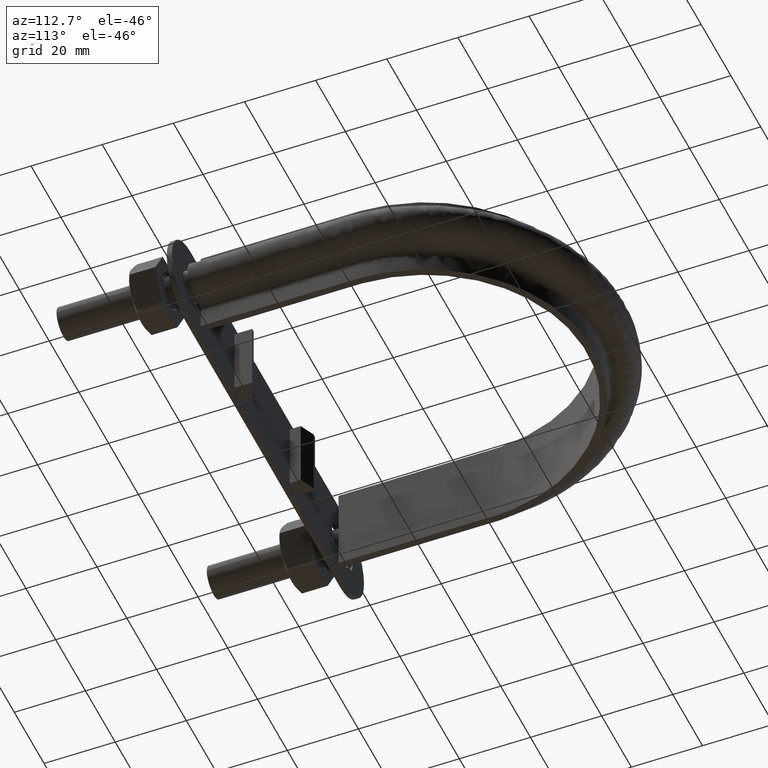
[diagram: clean part render]
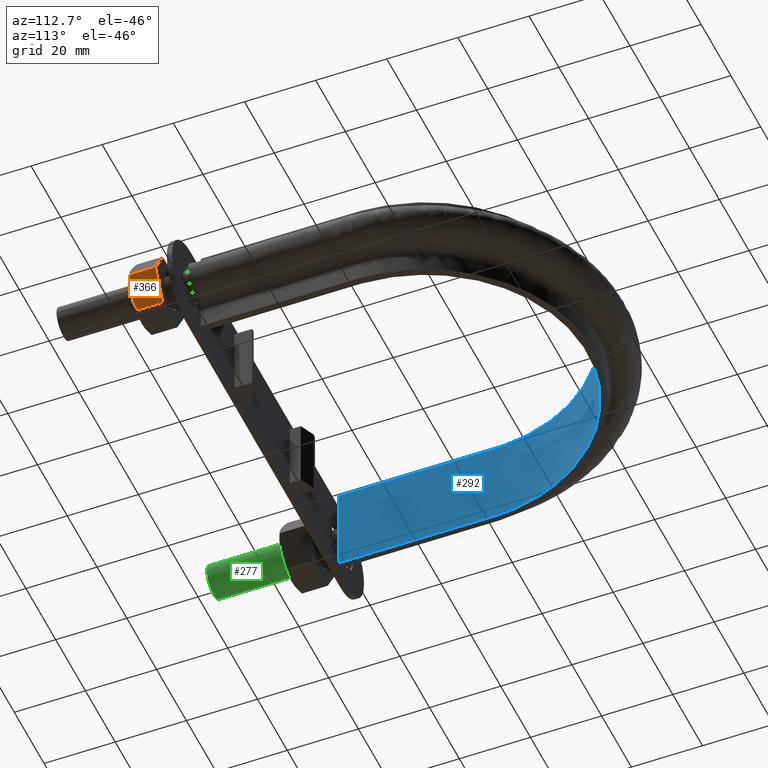
[diagram: same view with three faces highlighted in distinct colors, each labeled with its STEP entity id]
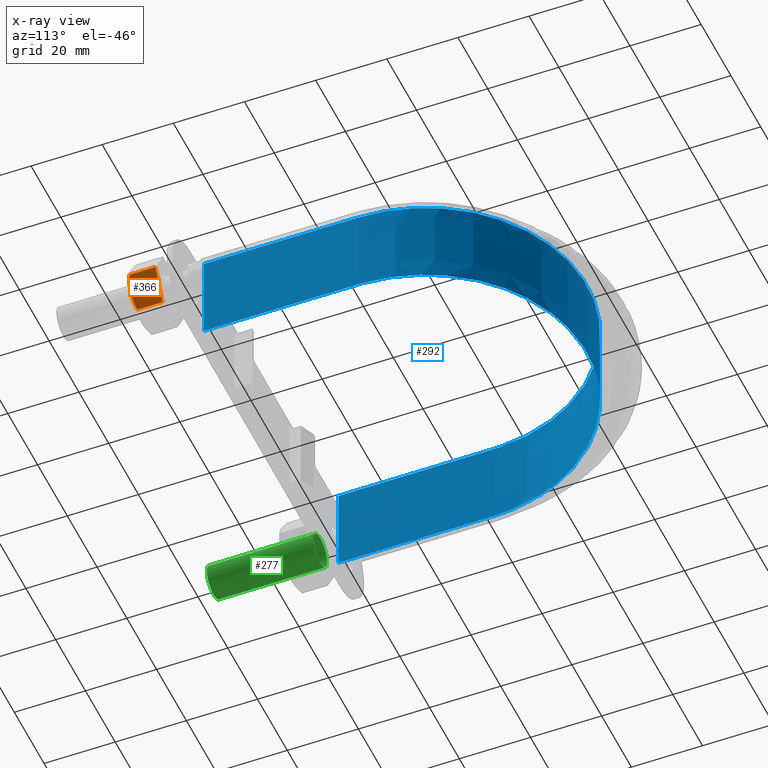
[diagram: x-ray of the same camera — body ghosted, the three highlighted faces saturated]
A machine part, auxiliary view with three faces highlighted in distinct colors.
The next image is the same camera in x-ray (body ghosted, the three faces saturated) — at least one of them is partly hidden behind the body in this view.
Their STEP definitions:

[orange] entity #366 — the highlighted planar face has unit normal (-0.866, 0, 0.5).
#366 = ADVANCED_FACE( '', ( #607 ), #608, .F. );
#607 = FACE_OUTER_BOUND( '', #1678, .T. );
#608 = PLANE( '', #1679 );
#1678 = EDGE_LOOP( '', ( #2438, #2439, #2440, #2441, #2442 ) );
#1679 = AXIS2_PLACEMENT_3D( '', #2443, #2444, #2445 );
#2438 = ORIENTED_EDGE( '', *, *, #2759, .F. );
#2439 = ORIENTED_EDGE( '', *, *, #2754, .F. );
#2440 = ORIENTED_EDGE( '', *, *, #2760, .F. );
#2441 = ORIENTED_EDGE( '', *, *, #2746, .F. );
#2442 = ORIENTED_EDGE( '', *, *, #2761, .F. );
#2443 = CARTESIAN_POINT( '', ( 60.3149545762201, 30.0000000000020, -5.77385204450641E-010 ) );
#2444 = DIRECTION( '', ( -0.866025403755025, 1.81492883553320E-016, 0.500000000050946 ) );
#2445 = DIRECTION( '', ( 0.500000000050946, -1.75487645995215E-016, 0.866025403755025 ) );
#2746 = EDGE_CURVE( '', #3130, #3132, #3133, .T. );
#2754 = EDGE_CURVE( '', #3144, #3093, #3146, .T. );
#2759 = EDGE_CURVE( '', #3093, #3151, #3152, .T. );
#2760 = EDGE_CURVE( '', #3132, #3144, #3153, .F. );
#2761 = EDGE_CURVE( '', #3151, #3130, #3154, .T. );
#3093 = VERTEX_POINT( '', #3915 );
#3130 = VERTEX_POINT( '', #3970 );
#3132 = VERTEX_POINT( '', #3972 );
#3133 = LINE( '', #3973, #3974 );
#3144 = VERTEX_POINT( '', #3995 );
#3146 = B_SPLINE_CURVE_WITH_KNOTS( '', 3, ( #3997, #3998, #3999, #4000, #4001, #4002 ), .UNSPECIFIED., .F., .F., ( 4, 2, 4 ), ( 4.83064900409211E-007, 0.00246777364959011, 0.00493506423427980 ), .UNSPECIFIED. );
#3151 = VERTEX_POINT( '', #4019 );
#3152 = B_SPLINE_CURVE_WITH_KNOTS( '', 3, ( #4020, #4021, #4022, #4023, #4024, #4025, #4026, #4027 ), .UNSPECIFIED., .F., .F., ( 4, 2, 2, 4 ), ( 0.00493506423427980, 0.00616384870526173, 0.00739263317624366, 0.00985020211820751 ), .UNSPECIFIED. );
#3153 = LINE( '', #4028, #4029 );
#3154 = LINE( '', #4030, #4031 );
#3915 = CARTESIAN_POINT( '', ( 57.8612159319151, 22.0000000000020, -4.25000000043151 ) );
#3970 = CARTESIAN_POINT( '', ( 60.2999656118141, 30.0000000000020, -0.0259616484778741 ) );
#3972 = CARTESIAN_POINT( '', ( 55.4224662520160, 30.0000000000020, -8.47403835238513 ) );
#3973 = CARTESIAN_POINT( '', ( 55.4112159316663, 30.0000000000020, -8.49352447882960 ) );
#3974 = VECTOR( '', #4388, 999.999999999879 );
#3995 = CARTESIAN_POINT( '', ( 55.4224662520160, 22.7505553499485, -8.47403835238513 ) );
#3997 = CARTESIAN_POINT( '', ( 55.4224662520159, 22.7505553499475, -8.47403835238525 ) );
#3998 = CARTESIAN_POINT( '', ( 55.8215186163373, 22.5212203171289, -7.78285938259404 ) );
#3999 = CARTESIAN_POINT( '', ( 56.2234530846201, 22.3324525365453, -7.08668846230971 ) );
#4000 = CARTESIAN_POINT( '', ( 57.0355986231032, 22.0714148540600, -5.68001112670764 ) );
#4001 = CARTESIAN_POINT( '', ( 57.4458704402519, 22.0000000000014, -4.96939949458900 ) );
#4002 = CARTESIAN_POINT( '', ( 57.8612159319150, 22.0000000000014, -4.25000000043158 ) );
#4019 = CARTESIAN_POINT( '', ( 60.2999656118141, 22.7505553499485, -0.0259616484778745 ) );
#4020 = CARTESIAN_POINT( '', ( 57.8612159319150, 22.0000000000014, -4.25000000043158 ) );
#4021 = CARTESIAN_POINT( '', ( 58.0680704035427, 22.0000000000014, -3.89171754584828 ) );
#4022 = CARTESIAN_POINT( '', ( 58.2759593946710, 22.0177112081778, -3.53164325092883 ) );
#4023 = CARTESIAN_POINT( '', ( 58.6872159205102, 22.0863021936226, -2.81932605332787 ) );
#4024 = CARTESIAN_POINT( '', ( 58.8914770989113, 22.1371116504208, -2.46553531437133 ) );
#4025 = CARTESIAN_POINT( '', ( 59.5006504949151, 22.3331494013926, -1.41041604201673 ) );
#4026 = CARTESIAN_POINT( '', ( 59.9019659646670, 22.5218253127367, -0.715317258637578 ) );
#4027 = CARTESIAN_POINT( '', ( 60.2999656118142, 22.7505553499476, -0.0259616484777306 ) );
#4028 = CARTESIAN_POINT( '', ( 55.4224662520160, 30.0000000000020, -8.47403835238513 ) );
#4029 = VECTOR( '', #4403, 1000.00000000024 );
#4030 = CARTESIAN_POINT( '', ( 60.2999656118141, 30.0000000000020, -0.0259616484778758 ) );
#4031 = VECTOR( '', #4404, 1000.00000000024 );
#4388 = DIRECTION( '', ( -0.500000000050946, 1.75487645995215E-016, -0.866025403755025 ) );
#4403 = DIRECTION( '', ( 2.44921270764475E-016, 1.00000000000000, 6.12303176911189E-017 ) );
#4404 = DIRECTION( '', ( 2.44921270764475E-016, 1.00000000000000, 6.12303176911189E-017 ) );

[blue] entity #292 — the highlighted face is a SurfaceOfExtrusion surface.
#292 = ADVANCED_FACE( '', ( #440 ), #441, .T. );
#440 = FACE_OUTER_BOUND( '', #856, .T. );
#441 = SURFACE_OF_LINEAR_EXTRUSION( '', #857, #858 );
#856 = EDGE_LOOP( '', ( #1859, #1860, #1861, #1862 ) );
#857 = B_SPLINE_CURVE_WITH_KNOTS( '', 3, ( #1863, #1864, #1865, #1866, #1867, #1868, #1869, #1870, #1871, #1872, #1873, #1874, #1875, #1876, #1877, #1878 ), .UNSPECIFIED., .F., .F., ( 4, 3, 1, 1, 1, 1, 1, 1, 3, 4 ), ( -8.93133047210300, -8.00000000000000, -7.00000000000000, -6.00000000000000, -5.00000000000000, -4.00000000000000, -3.00000000000000, -2.00000000000000, -1.00000000000000, -0.0686695278969956 ), .UNSPECIFIED. );
#858 = VECTOR( '', #1879, 1000.00000000000 );
#1859 = ORIENTED_EDGE( '', *, *, #2568, .T. );
#1860 = ORIENTED_EDGE( '', *, *, #2577, .T. );
#1861 = ORIENTED_EDGE( '', *, *, #2574, .F. );
#1862 = ORIENTED_EDGE( '', *, *, #2578, .T. );
#1863 = CARTESIAN_POINT( '', ( 45.3000000000000, 37.3000000000000, 12.5000100000910 ) );
#1864 = CARTESIAN_POINT( '', ( 45.3000000000000, 51.7666666666667, 12.5000100000910 ) );
#1865 = CARTESIAN_POINT( '', ( 45.3000000000000, 66.2333333333333, 12.5000100000910 ) );
#1866 = CARTESIAN_POINT( '', ( 45.3000000000000, 80.7000000000000, 12.5000100000910 ) );
#1867 = CARTESIAN_POINT( '', ( 45.3000000000000, 87.4617942068644, 12.5000100000910 ) );
#1868 = CARTESIAN_POINT( '', ( 42.2071641315033, 101.032157601825, 12.5000100000910 ) );
#1869 = CARTESIAN_POINT( '', ( 29.2082638356160, 117.324357375469, 12.5000100000910 ) );
#1870 = CARTESIAN_POINT( '', ( 10.4243086712368, 126.372209831110, 12.5000100000910 ) );
#1871 = CARTESIAN_POINT( '', ( -10.4243086712368, 126.372209831110, 12.5000100000910 ) );
#1872 = CARTESIAN_POINT( '', ( -29.2082638356159, 117.324357375469, 12.5000100000910 ) );
#1873 = CARTESIAN_POINT( '', ( -42.2071641315033, 101.032157601825, 12.5000100000910 ) );
#1874 = CARTESIAN_POINT( '', ( -45.3000000000000, 87.4617942068644, 12.5000100000910 ) );
#1875 = CARTESIAN_POINT( '', ( -45.3000000000000, 80.7000000000000, 12.5000100000910 ) );
#1876 = CARTESIAN_POINT( '', ( -45.3000000000000, 66.2333333333333, 12.5000100000910 ) );
#1877 = CARTESIAN_POINT( '', ( -45.3000000000000, 51.7666666666667, 12.5000100000910 ) );
#1878 = CARTESIAN_POINT( '', ( -45.3000000000000, 37.3000000000000, 12.5000100000910 ) );
#1879 = DIRECTION( '', ( 0.000000000000000, 0.000000000000000, -1.00000000000000 ) );
#2568 = EDGE_CURVE( '', #2829, #2830, #2831, .T. );
#2574 = EDGE_CURVE( '', #2839, #2842, #2843, .T. );
#2577 = EDGE_CURVE( '', #2830, #2842, #2847, .F. );
#2578 = EDGE_CURVE( '', #2839, #2829, #2848, .T. );
#2829 = VERTEX_POINT( '', #3278 );
#2830 = VERTEX_POINT( '', #3279 );
#2831 = LINE( '', #3280, #3281 );
#2839 = VERTEX_POINT( '', #3330 );
#2842 = VERTEX_POINT( '', #3334 );
#2843 = LINE( '', #3335, #3336 );
#2847 = B_SPLINE_CURVE_WITH_KNOTS( '', 3, ( #3371, #3372, #3373, #3374, #3375, #3376, #3377, #3378, #3379, #3380, #3381, #3382, #3383, #3384, #3385, #3386 ), .UNSPECIFIED., .F., .F., ( 4, 3, 1, 1, 1, 1, 1, 1, 3, 4 ), ( -8.93133047210300, -8.00000000000000, -7.00000000000000, -6.00000000000000, -5.00000000000000, -4.00000000000000, -3.00000000000000, -2.00000000000000, -1.00000000000000, -0.0686695278969956 ), .UNSPECIFIED. );
#2848 = B_SPLINE_CURVE_WITH_KNOTS( '', 3, ( #3387, #3388, #3389, #3390, #3391, #3392, #3393, #3394, #3395, #3396, #3397, #3398, #3399, #3400, #3401, #3402, #3403, #3404, #3405, #3406, #3407, #3408, #3409, #3410, #3411, #3412, #3413, #3414, #3415, #3416, #3417, #3418, #3419, #3420, #3421, #3422, #3423, #3424, #3425, #3426, #3427, #3428, #3429, #3430, #3431, #3432, #3433, #3434, #3435, #3436, #3437, #3438, #3439, #3440, #3441, #3442, #3443, #3444, #3445, #3446, #3447, #3448, #3449, #3450, #3451, #3452, #3453, #3454, #3455, #3456, #3457, #3458, #3459, #3460, #3461, #3462, #3463, #3464, #3465, #3466, #3467, #3468, #3469, #3470 ), .UNSPECIFIED., .F., .F., ( 4, 1, 2, 2, 2, 2, 2, 2, 2, 2, 2, 2, 2, 2, 2, 2, 2, 2, 2, 2, 2, 2, 2, 2, 2, 2, 2, 2, 2, 2, 2, 2, 2, 2, 2, 2, 2, 2, 2, 2, 2, 1, 4 ), ( 2.08166817117217E-017, 0.0287543779946535, 0.0431315669919803, 0.0440301413043132, 0.0449287156166461, 0.0467258642413121, 0.0503201614906439, 0.0575087559893077, 0.0611030532386396, 0.0629002018633055, 0.0646973504879714, 0.0718859449866351, 0.0754802422359670, 0.0790745394852989, 0.0862631339839626, 0.0898574312332945, 0.0916545798579604, 0.0934517284826263, 0.100640322981290, 0.107828917479954, 0.111423214729286, 0.115017511978617, 0.122206106477281, 0.124003255101947, 0.125800403726613, 0.129394700975945, 0.136583295474608, 0.138380444099274, 0.140177592723940, 0.143771889973272, 0.150960484471936, 0.154554781721267, 0.158149078970599, 0.165337673469263, 0.168931970718595, 0.170729119343260, 0.172526267967926, 0.179714862466590, 0.183309159715922, 0.185106308340588, 0.186903456965253, 0.201280645962581, 0.230035023957236 ), .UNSPECIFIED. );
#3278 = CARTESIAN_POINT( '', ( -45.3000000000000, 37.3000000000000, 12.5000000000000 ) );
#3279 = CARTESIAN_POINT( '', ( -45.3000000000000, 37.3000000000000, -12.5000000000000 ) );
#3280 = CARTESIAN_POINT( '', ( -45.3000000000000, 37.3000000000000, 12.5000100000910 ) );
#3281 = VECTOR( '', #4127, 1000.00000000000 );
#3330 = CARTESIAN_POINT( '', ( 45.3000000000000, 37.3000000000000, 12.5000000000000 ) );
#3334 = CARTESIAN_POINT( '', ( 45.3000000000000, 37.3000000000000, -12.5000000000000 ) );
#3335 = CARTESIAN_POINT( '', ( 45.3000000000000, 37.3000000000000, 12.5000100000910 ) );
#3336 = VECTOR( '', #4131, 1000.00000000000 );
#3371 = CARTESIAN_POINT( '', ( 45.3000000000000, 37.3000000000000, -12.5000000000000 ) );
#3372 = CARTESIAN_POINT( '', ( 45.3000000000000, 51.7666666666667, -12.5000000000000 ) );
#3373 = CARTESIAN_POINT( '', ( 45.3000000000000, 66.2333333333333, -12.5000000000000 ) );
#3374 = CARTESIAN_POINT( '', ( 45.3000000000000, 80.7000000000000, -12.5000000000000 ) );
#3375 = CARTESIAN_POINT( '', ( 45.3000000000000, 87.4617942068644, -12.5000000000000 ) );
#3376 = CARTESIAN_POINT( '', ( 42.2071641315033, 101.032157601825, -12.5000000000000 ) );
#3377 = CARTESIAN_POINT( '', ( 29.2082638356160, 117.324357375469, -12.5000000000000 ) );
#3378 = CARTESIAN_POINT( '', ( 10.4243086712368, 126.372209831110, -12.5000000000000 ) );
#3379 = CARTESIAN_POINT( '', ( -10.4243086712368, 126.372209831110, -12.5000000000000 ) );
#3380 = CARTESIAN_POINT( '', ( -29.2082638356159, 117.324357375469, -12.5000000000000 ) );
#3381 = CARTESIAN_POINT( '', ( -42.2071641315033, 101.032157601825, -12.5000000000000 ) );
#3382 = CARTESIAN_POINT( '', ( -45.3000000000000, 87.4617942068644, -12.5000000000000 ) );
#3383 = CARTESIAN_POINT( '', ( -45.3000000000000, 80.7000000000000, -12.5000000000000 ) );
#3384 = CARTESIAN_POINT( '', ( -45.3000000000000, 66.2333333333333, -12.5000000000000 ) );
#3385 = CARTESIAN_POINT( '', ( -45.3000000000000, 51.7666666666667, -12.5000000000000 ) );
#3386 = CARTESIAN_POINT( '', ( -45.3000000000000, 37.3000000000000, -12.5000000000000 ) );
#3387 = CARTESIAN_POINT( '', ( 45.3000000000000, 37.3000000000000, 12.5000000000000 ) );
#3388 = CARTESIAN_POINT( '', ( 45.3000000000000, 46.8848205646282, 12.5000000000000 ) );
#3389 = CARTESIAN_POINT( '', ( 45.3000000000000, 61.2620514115707, 12.5000000000000 ) );
#3390 = CARTESIAN_POINT( '', ( 45.3000000000000, 75.6392822585131, 12.5000000000000 ) );
#3391 = CARTESIAN_POINT( '', ( 45.3000000000000, 80.7312181834718, 12.5000000000000 ) );
#3392 = CARTESIAN_POINT( '', ( 45.2997760120250, 81.0307432856749, 12.5000000000000 ) );
#3393 = CARTESIAN_POINT( '', ( 45.2912777717044, 81.6297740662809, 12.5000000000000 ) );
#3394 = CARTESIAN_POINT( '', ( 45.2840050595567, 81.9292821612152, 12.5000000000000 ) );
#3395 = CARTESIAN_POINT( '', ( 45.2531480099003, 82.8277846367911, 12.5000000000000 ) );
#3396 = CARTESIAN_POINT( '', ( 45.2204957104834, 83.4272000245196, 12.5000000000000 ) );
#3397 = CARTESIAN_POINT( '', ( 45.0866957945141, 85.2224949492726, 12.5000000000000 ) );
#3398 = CARTESIAN_POINT( '', ( 44.9504291017170, 86.4079063220153, 12.5000000000000 ) );
#3399 = CARTESIAN_POINT( '', ( 44.4061177465218, 89.9311689042301, 12.5000000000000 ) );
#3400 = CARTESIAN_POINT( '', ( 43.8636822485659, 92.2363211946235, 12.5000000000000 ) );
#3401 = CARTESIAN_POINT( '', ( 42.7815683609984, 95.6287299026632, 12.5000000000000 ) );
#3402 = CARTESIAN_POINT( '', ( 42.3758385758423, 96.7485776392013, 12.5000000000000 ) );
#3403 = CARTESIAN_POINT( '', ( 41.6971261299261, 98.4112887411978, 12.5000000000000 ) );
#3404 = CARTESIAN_POINT( '', ( 41.4587485176160, 98.9635224872953, 12.5000000000000 ) );
#3405 = CARTESIAN_POINT( '', ( 40.9623939009448, 100.052686028662, 12.5000000000000 ) );
#3406 = CARTESIAN_POINT( '', ( 40.7040140940422, 100.590633634306, 12.5000000000000 ) );
#3407 = CARTESIAN_POINT( '', ( 39.3618284958927, 103.247672872113, 12.5000000000000 ) );
#3408 = CARTESIAN_POINT( '', ( 38.1287732829048, 105.269715209024, 12.5000000000000 ) );
#3409 = CARTESIAN_POINT( '', ( 36.0483927303405, 108.152702706861, 12.5000000000000 ) );
#3410 = CARTESIAN_POINT( '', ( 35.3162279376427, 109.088530904417, 12.5000000000000 ) );
#3411 = CARTESIAN_POINT( '', ( 33.7729613787722, 110.908858607226, 12.5000000000000 ) );
#3412 = CARTESIAN_POINT( '', ( 32.9584983694078, 111.796352407073, 12.5000000000000 ) );
#3413 = CARTESIAN_POINT( '', ( 30.4343658146004, 114.337344556213, 12.5000000000000 ) );
#3414 = CARTESIAN_POINT( '', ( 28.6360692622386, 115.881493975360, 12.5000000000000 ) );
#3415 = CARTESIAN_POINT( '', ( 25.7668653719942, 117.974964438366, 12.5000000000000 ) );
#3416 = CARTESIAN_POINT( '', ( 24.7819445161321, 118.635801019642, 12.5000000000000 ) );
#3417 = CARTESIAN_POINT( '', ( 23.2616146962020, 119.571356100425, 12.5000000000000 ) );
#3418 = CARTESIAN_POINT( '', ( 22.7476691870376, 119.873910471946, 12.5000000000000 ) );
#3419 = CARTESIAN_POINT( '', ( 21.7052773821732, 120.460213200769, 12.5000000000000 ) );
#3420 = CARTESIAN_POINT( '', ( 21.1756556167052, 120.744537298346, 12.5000000000000 ) );
#3421 = CARTESIAN_POINT( '', ( 18.5103111801555, 122.108501344270, 12.5000000000000 ) );
#3422 = CARTESIAN_POINT( '', ( 16.3185331092020, 123.020394560135, 12.5000000000000 ) );
#3423 = CARTESIAN_POINT( '', ( 11.8189661583873, 124.494646423883, 12.5000000000000 ) );
#3424 = CARTESIAN_POINT( '', ( 9.51076198777619, 125.055753822214, 12.5000000000000 ) );
#3425 = CARTESIAN_POINT( '', ( 5.95662532797859, 125.620734661634, 12.5000000000000 ) );
#3426 = CARTESIAN_POINT( '', ( 4.76788785050952, 125.761147485507, 12.5000000000000 ) );
#3427 = CARTESIAN_POINT( '', ( 2.39647070391247, 125.947851083060, 12.5000000000000 ) );
#3428 = CARTESIAN_POINT( '', ( 1.21153117527857, 125.994499013257, 12.5000000000000 ) );
#3429 = CARTESIAN_POINT( '', ( -2.34101805316254, 125.996625356462, 12.5000000000000 ) );
#3430 = CARTESIAN_POINT( '', ( -4.70637779815006, 125.815464639074, 12.5000000000000 ) );
#3431 = CARTESIAN_POINT( '', ( -7.65915858277230, 125.351020241084, 12.5000000000000 ) );
#3432 = CARTESIAN_POINT( '', ( -8.25083455194665, 125.245862246466, 12.5000000000000 ) );
#3433 = CARTESIAN_POINT( '', ( -9.42653190172396, 125.012409776832, 12.5000000000000 ) );
#3434 = CARTESIAN_POINT( '', ( -10.0101476162836, 124.884250803394, 12.5000000000000 ) );
#3435 = CARTESIAN_POINT( '', ( -11.7484468334342, 124.465883377835, 12.5000000000000 ) );
#3436 = CARTESIAN_POINT( '', ( -12.8906527223969, 124.141974327520, 12.5000000000000 ) );
#3437 = CARTESIAN_POINT( '', ( -16.2689101217008, 123.039631660257, 12.5000000000000 ) );
#3438 = CARTESIAN_POINT( '', ( -18.4569925447982, 122.131639060066, 12.5000000000000 ) );
#3439 = CARTESIAN_POINT( '', ( -21.1113012403398, 120.778432115202, 12.5000000000000 ) );
#3440 = CARTESIAN_POINT( '', ( -21.6380918925233, 120.496795189040, 12.5000000000000 ) );
#3441 = CARTESIAN_POINT( '', ( -22.6833837807200, 119.911132577781, 12.5000000000000 ) );
#3442 = CARTESIAN_POINT( '', ( -23.2017061819432, 119.607128404409, 12.5000000000000 ) );
#3443 = CARTESIAN_POINT( '', ( -24.7303471350012, 118.669564342871, 12.5000000000000 ) );
#3444 = CARTESIAN_POINT( '', ( -25.7191011998731, 118.007938274698, 12.5000000000000 ) );
#3445 = CARTESIAN_POINT( '', ( -28.5955069273408, 115.914712609781, 12.5000000000000 ) );
#3446 = CARTESIAN_POINT( '', ( -30.3928386158799, 114.374206663575, 12.5000000000000 ) );
#3447 = CARTESIAN_POINT( '', ( -32.9098802473355, 111.847665641424, 12.5000000000000 ) );
#3448 = CARTESIAN_POINT( '', ( -33.7201063858691, 110.968144324298, 12.5000000000000 ) );
#3449 = CARTESIAN_POINT( '', ( -35.2745676507393, 109.140548074671, 12.5000000000000 ) );
#3450 = CARTESIAN_POINT( '', ( -36.0108033379542, 108.202093103808, 12.5000000000000 ) );
#3451 = CARTESIAN_POINT( '', ( -38.0999731742671, 105.314831254988, 12.5000000000000 ) );
#3452 = CARTESIAN_POINT( '', ( -39.3343184899537, 103.294697861214, 12.5000000000000 ) );
#3453 = CARTESIAN_POINT( '', ( -40.9440306770637, 100.119061107137, 12.5000000000000 ) );
#3454 = CARTESIAN_POINT( '', ( -41.4398476877741, 99.0360037648772, 12.5000000000000 ) );
#3455 = CARTESIAN_POINT( '', ( -42.1215319712500, 97.3741023919349, 12.5000000000000 ) );
#3456 = CARTESIAN_POINT( '', ( -42.3385970417913, 96.8132838052199, 12.5000000000000 ) );
#3457 = CARTESIAN_POINT( '', ( -42.7483267135284, 95.6890735338500, 12.5000000000000 ) );
#3458 = CARTESIAN_POINT( '', ( -42.9414928116361, 95.1245361143393, 12.5000000000000 ) );
#3459 = CARTESIAN_POINT( '', ( -43.8499727665167, 92.2899252705552, 12.5000000000000 ) );
#3460 = CARTESIAN_POINT( '', ( -44.3947073189255, 89.9843867139324, 12.5000000000000 ) );
#3461 = CARTESIAN_POINT( '', ( -44.9423619636433, 86.4700581320871, 12.5000000000000 ) );
#3462 = CARTESIAN_POINT( '', ( -45.0797192826280, 85.2892189421347, 12.5000000000000 ) );
#3463 = CARTESIAN_POINT( '', ( -45.2157289936545, 83.5034010003825, 12.5000000000000 ) );
#3464 = CARTESIAN_POINT( '', ( -45.2493799141445, 82.9055639113822, 12.5000000000000 ) );
#3465 = CARTESIAN_POINT( '', ( -45.2926573150339, 81.7054461976235, 12.5000000000000 ) );
#3466 = CARTESIAN_POINT( '', ( -45.3000000000000, 81.1053775573681, 12.5000000000000 ) );
#3467 = CARTESIAN_POINT( '', ( -45.3000000000000, 75.7047145708433, 12.5000000000000 ) );
#3468 = CARTESIAN_POINT( '', ( -45.3000000000000, 61.3029466067771, 12.5000000000000 ) );
#3469 = CARTESIAN_POINT( '', ( -45.3000000000000, 46.9011786427108, 12.5000000000000 ) );
#3470 = CARTESIAN_POINT( '', ( -45.3000000000000, 37.2999999999999, 12.5000000000000 ) );
#4127 = DIRECTION( '', ( 0.000000000000000, 0.000000000000000, -1.00000000000000 ) );
#4131 = DIRECTION( '', ( 0.000000000000000, 0.000000000000000, -1.00000000000000 ) );

[green] entity #277 — the highlighted cylindrical surface (bore or boss wall) has radius 4.6 mm, axis along (0, 1, 0).
#277 = ADVANCED_FACE( '', ( #404, #405 ), #406, .T. );
#404 = FACE_OUTER_BOUND( '', #820, .T. );
#405 = FACE_OUTER_BOUND( '', #821, .T. );
#406 = CYLINDRICAL_SURFACE( '', #822, 4.60000000000000 );
#820 = EDGE_LOOP( '', ( #1779 ) );
#821 = EDGE_LOOP( '', ( #1780 ) );
#822 = AXIS2_PLACEMENT_3D( '', #1781, #1782, #1783 );
#1779 = ORIENTED_EDGE( '', *, *, #2564, .T. );
#1780 = ORIENTED_EDGE( '', *, *, #2565, .F. );
#1781 = CARTESIAN_POINT( '', ( -50.5000000000000, 30.0000000000000, 1.89201681665557E-015 ) );
#1782 = DIRECTION( '', ( 2.44921270764475E-016, 1.00000000000000, 6.12303176911189E-017 ) );
#1783 = DIRECTION( '', ( 1.00000000000000, -2.44921270764475E-016, -7.49830360911069E-033 ) );
#2564 = EDGE_CURVE( '', #2821, #2821, #2822, .T. );
#2565 = EDGE_CURVE( '', #2823, #2823, #2824, .T. );
#2821 = VERTEX_POINT( '', #3261 );
#2822 = CIRCLE( '', #3262, 4.60000000000000 );
#2823 = VERTEX_POINT( '', #3263 );
#2824 = CIRCLE( '', #3264, 4.60000000000000 );
#3261 = CARTESIAN_POINT( '', ( -45.9000000000000, 30.0000000000000, 1.89201681665557E-015 ) );
#3262 = AXIS2_PLACEMENT_3D( '', #4118, #4119, #4120 );
#3263 = CARTESIAN_POINT( '', ( -45.9000000000000, 1.12418863280894E-014, 5.51072859220073E-017 ) );
#3264 = AXIS2_PLACEMENT_3D( '', #4121, #4122, #4123 );
#4118 = CARTESIAN_POINT( '', ( -50.5000000000000, 30.0000000000000, 1.89201681665557E-015 ) );
#4119 = DIRECTION( '', ( -2.44921270764475E-016, -1.00000000000000, -6.12303176911189E-017 ) );
#4120 = DIRECTION( '', ( 1.00000000000000, -2.44921270764475E-016, -1.01150562509412E-032 ) );
#4121 = CARTESIAN_POINT( '', ( -50.5000000000000, 1.23685241736060E-014, 5.51072859220074E-017 ) );
#4122 = DIRECTION( '', ( -2.44921270764475E-016, -1.00000000000000, -6.12303176911189E-017 ) );
#4123 = DIRECTION( '', ( 1.00000000000000, -2.44921270764475E-016, -1.01150562509412E-032 ) );